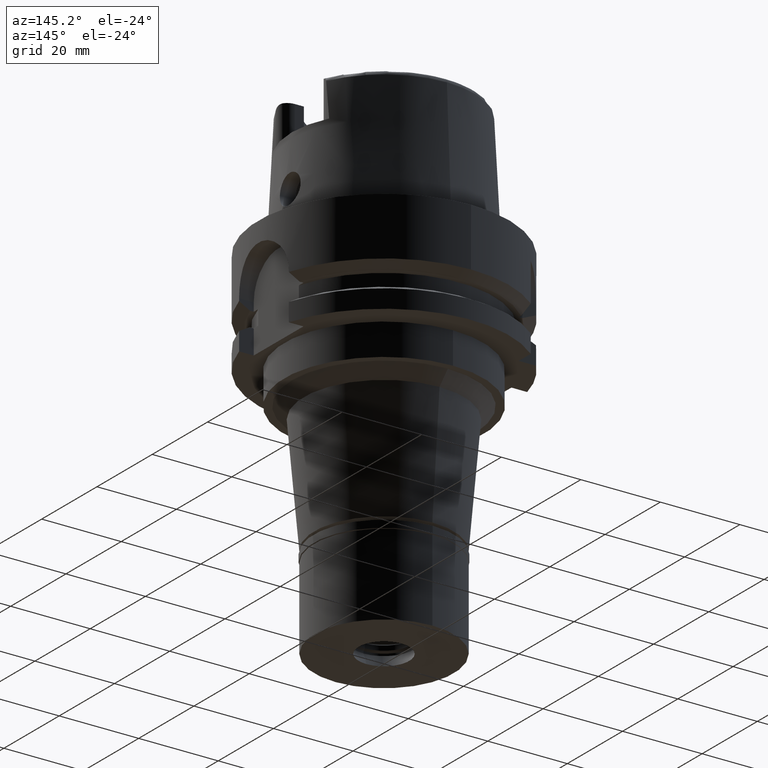
[diagram: clean part render]
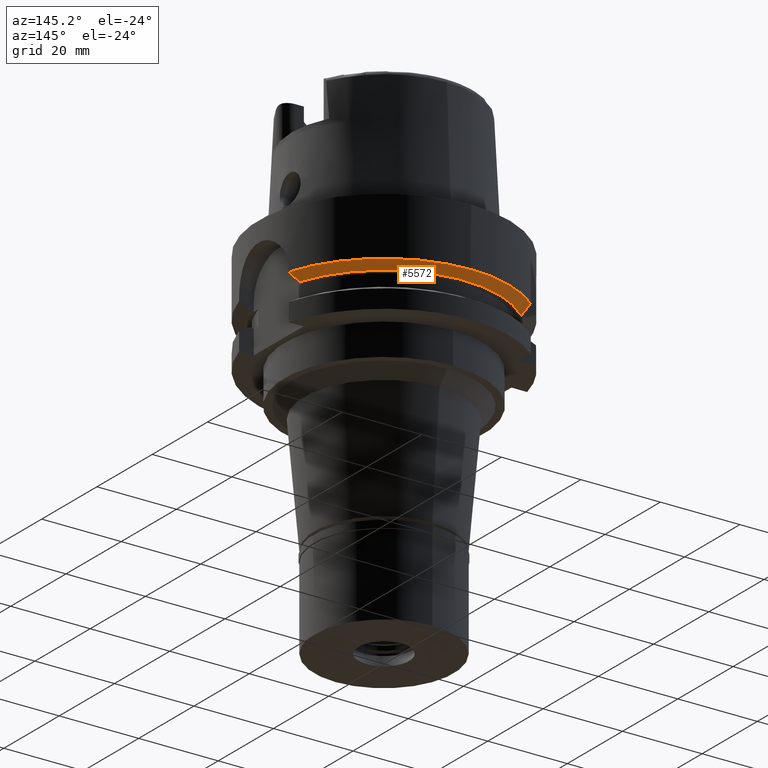
[diagram: same view with one face highlighted and labeled with its STEP entity id]
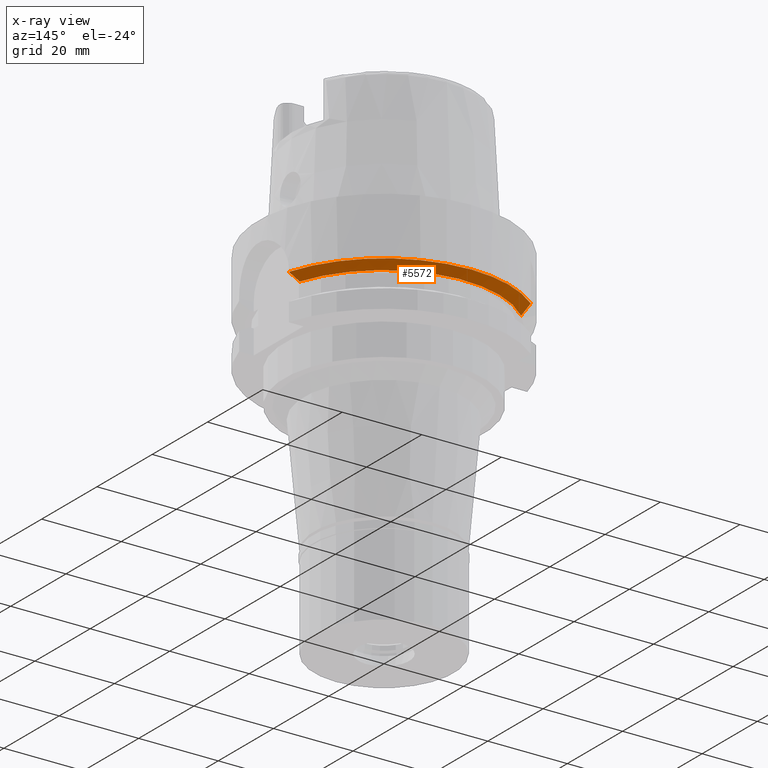
[diagram: x-ray of the same camera — body ghosted, the highlighted face saturated]
A machine part, auxiliary view. The second image highlights one B-rep face of the part: STEP entity #5572.
The next image is the same camera in x-ray: the body ghosted, the highlighted face saturated — about 0% of this face is hidden behind the body in this view.
In plain terms, the highlighted conical surface has half-angle 60 deg.
Its self-contained STEP definition (entity closure, byte-faithful):
#155 = VERTEX_POINT ( 'NONE', #2854 ) ;
#223 = ORIENTED_EDGE ( 'NONE', *, *, #4257, .T. ) ;
#379 = CARTESIAN_POINT ( 'NONE',  ( 30.18691748950000076, 9.000000693455000089, -14.62249533228000153 ) ) ;
#395 = AXIS2_PLACEMENT_3D ( 'NONE', #2686, #1409, #4437 ) ;
#467 = CARTESIAN_POINT ( 'NONE',  ( -20.00002748883304093, 23.13591286296415817, -15.15787019954225556 ) ) ;
#560 = CARTESIAN_POINT ( 'NONE',  ( 27.46035049836999775, 9.000000213591000886, -16.12500000000000000 ) ) ;
#649 = ORIENTED_EDGE ( 'NONE', *, *, #3211, .F. ) ;
#1274 = DIRECTION ( 'NONE',  ( 0.0000000000000000000, 1.000000000000000000, 0.0000000000000000000 ) ) ;
#1409 = DIRECTION ( 'NONE',  ( 0.0000000000000000000, 0.0000000000000000000, 1.000000000000000000 ) ) ;
#1491 = EDGE_CURVE ( 'NONE', #2258, #3898, #1849, .T. ) ;
#1588 = EDGE_CURVE ( 'NONE', #5320, #5433, #2449, .T. ) ;
#1617 = CIRCLE ( 'NONE', #1709, 31.49999999999999645 ) ;
#1650 = DIRECTION ( 'NONE',  ( 0.0000000000000000000, 0.0000000000000000000, 1.000000000000000000 ) ) ;
#1709 = AXIS2_PLACEMENT_3D ( 'NONE', #5046, #2410, #3225 ) ;
#1717 = CARTESIAN_POINT ( 'NONE',  ( -20.00000400335999728, 20.85831984813000162, -16.12500000000000000 ) ) ;
#1849 = B_SPLINE_CURVE_WITH_KNOTS ( 'NONE', 3,
 ( #5607, #4396, #5134, #2117, #3030, #379 ),
 .UNSPECIFIED., .F., .F.,
 ( 4, 1, 1, 4 ),
 ( 0.0000000000000000000, 0.3333333333333000081, 0.6666666666667000474, 1.000000000000000000 ),
 .UNSPECIFIED. ) ;
#2117 = CARTESIAN_POINT ( 'NONE',  ( 29.26014684753000239, 8.999999704866000982, -15.13483808291000088 ) ) ;
#2258 = VERTEX_POINT ( 'NONE', #560 ) ;
#2410 = DIRECTION ( 'NONE',  ( 0.0000000000000000000, 0.0000000000000000000, 1.000000000000000000 ) ) ;
#2449 = B_SPLINE_CURVE_WITH_KNOTS ( 'NONE', 3,
 ( #1717, #2534, #467, #4769 ),
 .UNSPECIFIED., .F., .F.,
 ( 4, 4 ),
 ( 0.0000000000000000000, 1.000000000000000000 ),
 .UNSPECIFIED. ) ;
#2534 = CARTESIAN_POINT ( 'NONE',  ( -20.00000808210187841, 21.97726579126707236, -15.65871069883595368 ) ) ;
#2574 = DIRECTION ( 'NONE',  ( 0.0000000000000000000, 0.0000000000000000000, 1.000000000000000000 ) ) ;
#2686 = CARTESIAN_POINT ( 'NONE',  ( 0.0000000000000000000, 0.0000000000000000000, -16.12500000000000000 ) ) ;
#2763 = CIRCLE ( 'NONE', #4773, 31.50000000000000000 ) ;
#2854 = CARTESIAN_POINT ( 'NONE',  ( 0.0000000000000000000, 31.50000000000000000, -14.62250092523999889 ) ) ;
#3030 = CARTESIAN_POINT ( 'NONE',  ( 29.87628016660999819, 9.000000693455000089, -14.79436578278999903 ) ) ;
#3037 = EDGE_LOOP ( 'NONE', ( #4141, #649, #5297, #223, #4058 ) ) ;
#3211 = EDGE_CURVE ( 'NONE', #3898, #155, #1617, .T. ) ;
#3225 = DIRECTION ( 'NONE',  ( 0.9583148474999051425, 0.2857142857143015191, 0.0000000000000000000 ) ) ;
#3466 = FACE_OUTER_BOUND ( 'NONE', #3037, .T. ) ;
#3898 = VERTEX_POINT ( 'NONE', #5285 ) ;
#3970 = DIRECTION ( 'NONE',  ( 0.0000000000000000000, 1.000000000000000000, 0.0000000000000000000 ) ) ;
#4058 = ORIENTED_EDGE ( 'NONE', *, *, #1588, .T. ) ;
#4093 = EDGE_CURVE ( 'NONE', #155, #5433, #2763, .T. ) ;
#4141 = ORIENTED_EDGE ( 'NONE', *, *, #4093, .F. ) ;
#4257 = EDGE_CURVE ( 'NONE', #2258, #5320, #5300, .T. ) ;
#4396 = CARTESIAN_POINT ( 'NONE',  ( 27.75563367334999754, 9.000000213591000886, -15.96299721145000028 ) ) ;
#4437 = DIRECTION ( 'NONE',  ( 0.0000000000000000000, 1.000000000000000000, 0.0000000000000000000 ) ) ;
#4709 = CARTESIAN_POINT ( 'NONE',  ( 0.0000000000000000000, 0.0000000000000000000, -14.62250092523999889 ) ) ;
#4726 = CARTESIAN_POINT ( 'NONE',  ( -20.00001377493000021, 24.33617572673000140, -14.62245154170999939 ) ) ;
#4769 = CARTESIAN_POINT ( 'NONE',  ( -20.00001377493000021, 24.33617572673000140, -14.62245154170999939 ) ) ;
#4773 = AXIS2_PLACEMENT_3D ( 'NONE', #4709, #1650, #3970 ) ;
#5046 = CARTESIAN_POINT ( 'NONE',  ( 0.0000000000000000000, 0.0000000000000000000, -14.62250092523999889 ) ) ;
#5134 = CARTESIAN_POINT ( 'NONE',  ( 28.35129951915000035, 8.999999992784999847, -15.63568861932999887 ) ) ;
#5203 = CARTESIAN_POINT ( 'NONE',  ( 0.0000000000000000000, 0.0000000000000000000, -15.37375046262000033 ) ) ;
#5206 = AXIS2_PLACEMENT_3D ( 'NONE', #5203, #2574, #1274 ) ;
#5285 = CARTESIAN_POINT ( 'NONE',  ( 30.18691748950000076, 9.000000693455000089, -14.62249533228000153 ) ) ;
#5297 = ORIENTED_EDGE ( 'NONE', *, *, #1491, .F. ) ;
#5300 = CIRCLE ( 'NONE', #395, 28.89759526419000224 ) ;
#5320 = VERTEX_POINT ( 'NONE', #5414 ) ;
#5414 = CARTESIAN_POINT ( 'NONE',  ( -20.00000400335999728, 20.85831984813000162, -16.12500000000000000 ) ) ;
#5433 = VERTEX_POINT ( 'NONE', #4726 ) ;
#5556 = CONICAL_SURFACE ( 'NONE', #5206, 30.19879763209999979, 1.047197551196400456 ) ;
#5572 = ADVANCED_FACE ( 'NONE', ( #3466 ), #5556, .T. ) ;
#5607 = CARTESIAN_POINT ( 'NONE',  ( 27.46035049836999775, 9.000000213591000886, -16.12500000000000000 ) ) ;